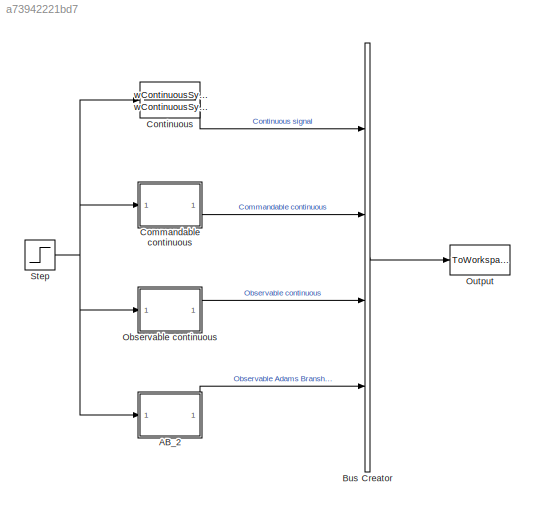
MODEL slx_a73942221bd7
KIND model
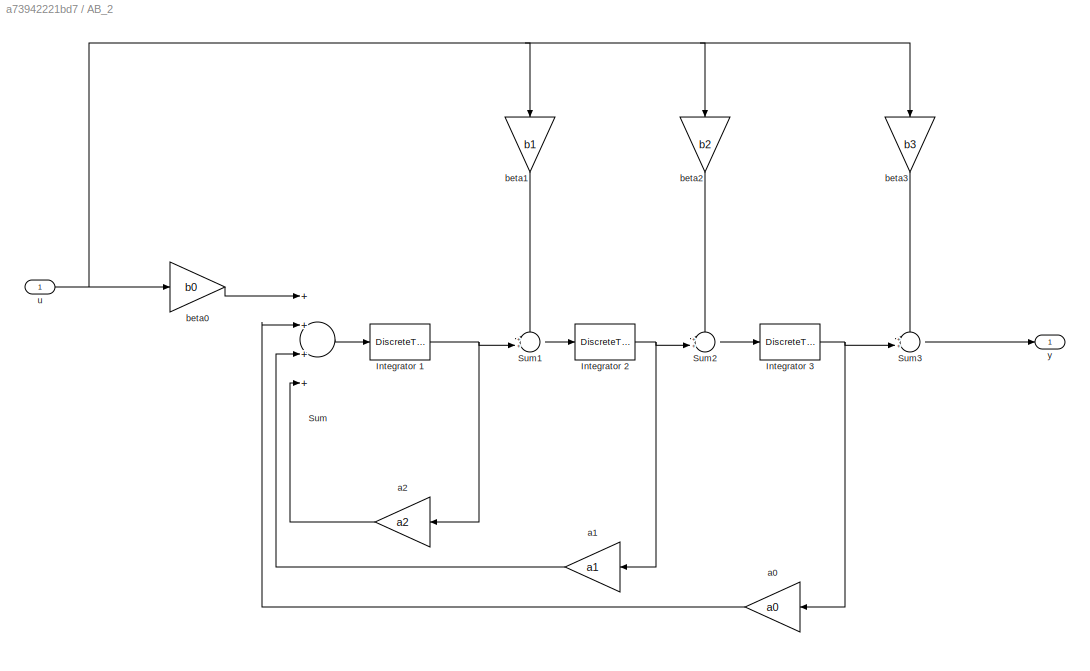
BLOCK [SubSystem] AB_2
  Ports = [1, 1]
  RequestExecContextInheritance = off
  TreatAsAtomicUnit = on
BLOCK [DiscreteTransferFcn] AB_2/Integrator 1
  Denominator = HzDen
  InputPortMap = u0
  Numerator = T*HzNum
  Ports = [1, 1]
  SampleTime = T
BLOCK [DiscreteTransferFcn] AB_2/Integrator 2
  Denominator = HzDen
  InputPortMap = u0
  Numerator = T*HzNum
  Ports = [1, 1]
  SampleTime = T
BLOCK [DiscreteTransferFcn] AB_2/Integrator 3
  Denominator = HzDen
  InputPortMap = u0
  Numerator = T*HzNum
  Ports = [1, 1]
  SampleTime = T
BLOCK [Sum] AB_2/Sum
  InputSameDT = off
  Inputs = ++++
  OutDataTypeStr = Inherit: Inherit via internal rule
  Ports = [4, 1]
  SaturateOnIntegerOverflow = off
BLOCK [Sum] AB_2/Sum1
  IconShape = round
  InputSameDT = off
  Inputs = ++|
  OutDataTypeStr = Inherit: Inherit via internal rule
  Ports = [2, 1]
  SaturateOnIntegerOverflow = off
BLOCK [Sum] AB_2/Sum2
  IconShape = round
  InputSameDT = off
  Inputs = ++|
  OutDataTypeStr = Inherit: Inherit via internal rule
  Ports = [2, 1]
  SaturateOnIntegerOverflow = off
BLOCK [Sum] AB_2/Sum3
  IconShape = round
  InputSameDT = off
  Inputs = ++|
  OutDataTypeStr = Inherit: Inherit via internal rule
  Ports = [2, 1]
  SaturateOnIntegerOverflow = off
BLOCK [Gain] AB_2/a0
  Gain = a0
  OutDataTypeStr = Inherit: Inherit via internal rule
  ParamDataTypeStr = Inherit: Inherit via internal rule
  SaturateOnIntegerOverflow = off
BLOCK [Gain] AB_2/a1
  Gain = a1
  OutDataTypeStr = Inherit: Inherit via internal rule
  ParamDataTypeStr = Inherit: Inherit via internal rule
  SaturateOnIntegerOverflow = off
BLOCK [Gain] AB_2/a2
  Gain = a2
  OutDataTypeStr = Inherit: Inherit via internal rule
  ParamDataTypeStr = Inherit: Inherit via internal rule
  SaturateOnIntegerOverflow = off
BLOCK [Gain] AB_2/beta0
  Gain = b0
  OutDataTypeStr = Inherit: Inherit via internal rule
  ParamDataTypeStr = Inherit: Inherit via internal rule
  SaturateOnIntegerOverflow = off
BLOCK [Gain] AB_2/beta1
  Gain = b1
  OutDataTypeStr = Inherit: Inherit via internal rule
  ParamDataTypeStr = Inherit: Inherit via internal rule
  SaturateOnIntegerOverflow = off
BLOCK [Gain] AB_2/beta2
  Gain = b2
  OutDataTypeStr = Inherit: Inherit via internal rule
  ParamDataTypeStr = Inherit: Inherit via internal rule
  SaturateOnIntegerOverflow = off
BLOCK [Gain] AB_2/beta3
  Gain = b3
  OutDataTypeStr = Inherit: Inherit via internal rule
  ParamDataTypeStr = Inherit: Inherit via internal rule
  SaturateOnIntegerOverflow = off
BLOCK [Inport] AB_2/u
  IconDisplay = Port number
BLOCK [Outport] AB_2/y
  IconDisplay = Port number
BLOCK [BusCreator] Bus Creator
  DisplayOption = bar
  Ports = [4, 1]
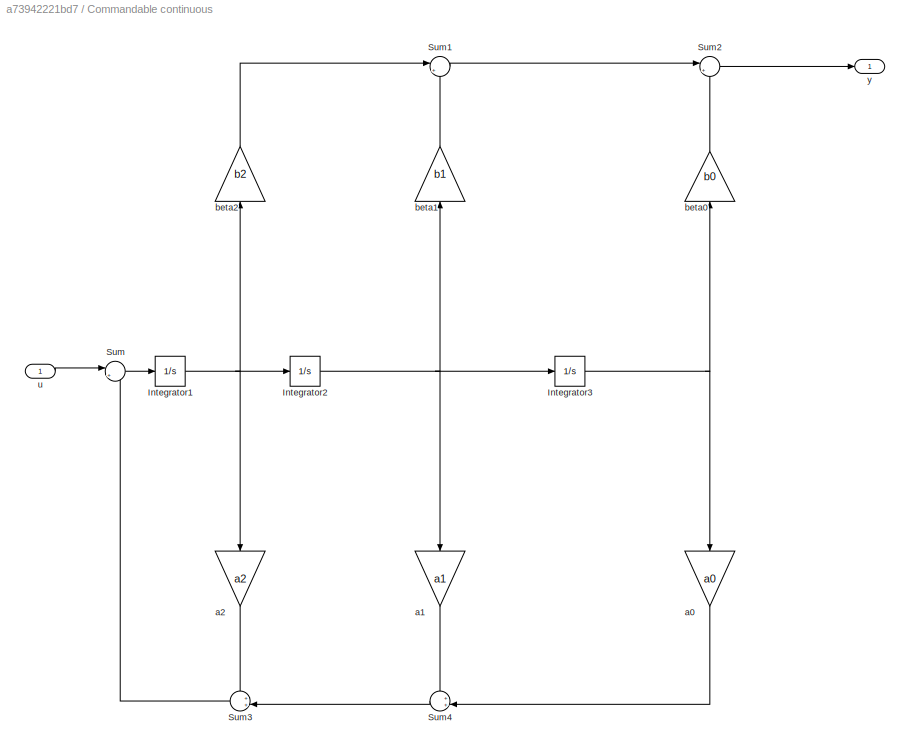
BLOCK [SubSystem] Commandable continuous
  Ports = [1, 1]
  RequestExecContextInheritance = off
  TreatAsAtomicUnit = on
BLOCK [Integrator] Commandable continuous/Integrator1
  Ports = [1, 1]
BLOCK [Integrator] Commandable continuous/Integrator2
  Ports = [1, 1]
BLOCK [Integrator] Commandable continuous/Integrator3
  Ports = [1, 1]
BLOCK [Sum] Commandable continuous/Sum
  IconShape = round
  InputSameDT = off
  Inputs = |++
  OutDataTypeStr = Inherit: Inherit via internal rule
  Ports = [2, 1]
  SaturateOnIntegerOverflow = off
BLOCK [Sum] Commandable continuous/Sum1
  IconShape = round
  InputSameDT = off
  Inputs = |++
  OutDataTypeStr = Inherit: Inherit via internal rule
  Ports = [2, 1]
  SaturateOnIntegerOverflow = off
BLOCK [Sum] Commandable continuous/Sum2
  IconShape = round
  InputSameDT = off
  Inputs = |++
  OutDataTypeStr = Inherit: Inherit via internal rule
  Ports = [2, 1]
  SaturateOnIntegerOverflow = off
BLOCK [Sum] Commandable continuous/Sum3
  IconShape = round
  InputSameDT = off
  Inputs = ++|
  OutDataTypeStr = Inherit: Inherit via internal rule
  Ports = [2, 1]
  SaturateOnIntegerOverflow = off
BLOCK [Sum] Commandable continuous/Sum4
  IconShape = round
  InputSameDT = off
  Inputs = ++|
  OutDataTypeStr = Inherit: Inherit via internal rule
  Ports = [2, 1]
  SaturateOnIntegerOverflow = off
BLOCK [Gain] Commandable continuous/a0
  Gain = a0
  OutDataTypeStr = Inherit: Inherit via internal rule
  ParamDataTypeStr = Inherit: Inherit via internal rule
  SaturateOnIntegerOverflow = off
BLOCK [Gain] Commandable continuous/a1
  Gain = a1
  OutDataTypeStr = Inherit: Inherit via internal rule
  ParamDataTypeStr = Inherit: Inherit via internal rule
  SaturateOnIntegerOverflow = off
BLOCK [Gain] Commandable continuous/a2
  Gain = a2
  OutDataTypeStr = Inherit: Inherit via internal rule
  ParamDataTypeStr = Inherit: Inherit via internal rule
  SaturateOnIntegerOverflow = off
BLOCK [Gain] Commandable continuous/beta0
  Gain = b0
  OutDataTypeStr = Inherit: Inherit via internal rule
  ParamDataTypeStr = Inherit: Inherit via internal rule
  SaturateOnIntegerOverflow = off
BLOCK [Gain] Commandable continuous/beta1
  Gain = b1
  OutDataTypeStr = Inherit: Inherit via internal rule
  ParamDataTypeStr = Inherit: Inherit via internal rule
  SaturateOnIntegerOverflow = off
BLOCK [Gain] Commandable continuous/beta2
  Gain = b2
  OutDataTypeStr = Inherit: Inherit via internal rule
  ParamDataTypeStr = Inherit: Inherit via internal rule
  SaturateOnIntegerOverflow = off
BLOCK [Inport] Commandable continuous/u
  IconDisplay = Port number
BLOCK [Outport] Commandable continuous/y
  IconDisplay = Port number
BLOCK [TransferFcn] Continuous
  Denominator = wContinuousSystemDen
  Numerator = wContinuousSystemNum
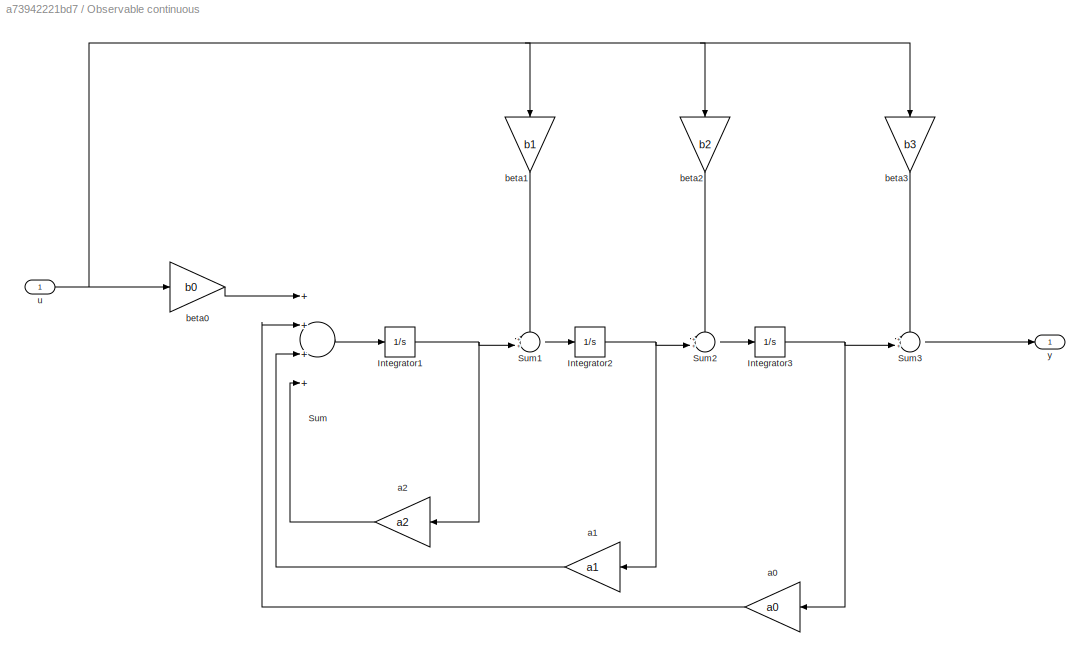
BLOCK [SubSystem] Observable continuous
  Ports = [1, 1]
  RequestExecContextInheritance = off
  TreatAsAtomicUnit = on
BLOCK [Integrator] Observable continuous/Integrator1
  Ports = [1, 1]
BLOCK [Integrator] Observable continuous/Integrator2
  Ports = [1, 1]
BLOCK [Integrator] Observable continuous/Integrator3
  Ports = [1, 1]
BLOCK [Sum] Observable continuous/Sum
  InputSameDT = off
  Inputs = ++++
  OutDataTypeStr = Inherit: Inherit via internal rule
  Ports = [4, 1]
  SaturateOnIntegerOverflow = off
BLOCK [Sum] Observable continuous/Sum1
  IconShape = round
  InputSameDT = off
  Inputs = ++|
  OutDataTypeStr = Inherit: Inherit via internal rule
  Ports = [2, 1]
  SaturateOnIntegerOverflow = off
BLOCK [Sum] Observable continuous/Sum2
  IconShape = round
  InputSameDT = off
  Inputs = ++|
  OutDataTypeStr = Inherit: Inherit via internal rule
  Ports = [2, 1]
  SaturateOnIntegerOverflow = off
BLOCK [Sum] Observable continuous/Sum3
  IconShape = round
  InputSameDT = off
  Inputs = ++|
  OutDataTypeStr = Inherit: Inherit via internal rule
  Ports = [2, 1]
  SaturateOnIntegerOverflow = off
BLOCK [Gain] Observable continuous/a0
  Gain = a0
  OutDataTypeStr = Inherit: Inherit via internal rule
  ParamDataTypeStr = Inherit: Inherit via internal rule
  SaturateOnIntegerOverflow = off
BLOCK [Gain] Observable continuous/a1
  Gain = a1
  OutDataTypeStr = Inherit: Inherit via internal rule
  ParamDataTypeStr = Inherit: Inherit via internal rule
  SaturateOnIntegerOverflow = off
BLOCK [Gain] Observable continuous/a2
  Gain = a2
  OutDataTypeStr = Inherit: Inherit via internal rule
  ParamDataTypeStr = Inherit: Inherit via internal rule
  SaturateOnIntegerOverflow = off
BLOCK [Gain] Observable continuous/beta0
  Gain = b0
  OutDataTypeStr = Inherit: Inherit via internal rule
  ParamDataTypeStr = Inherit: Inherit via internal rule
  SaturateOnIntegerOverflow = off
BLOCK [Gain] Observable continuous/beta1
  Gain = b1
  OutDataTypeStr = Inherit: Inherit via internal rule
  ParamDataTypeStr = Inherit: Inherit via internal rule
  SaturateOnIntegerOverflow = off
BLOCK [Gain] Observable continuous/beta2
  Gain = b2
  OutDataTypeStr = Inherit: Inherit via internal rule
  ParamDataTypeStr = Inherit: Inherit via internal rule
  SaturateOnIntegerOverflow = off
BLOCK [Gain] Observable continuous/beta3
  Gain = b3
  OutDataTypeStr = Inherit: Inherit via internal rule
  ParamDataTypeStr = Inherit: Inherit via internal rule
  SaturateOnIntegerOverflow = off
BLOCK [Inport] Observable continuous/u
  IconDisplay = Port number
BLOCK [Outport] Observable continuous/y
  IconDisplay = Port number
BLOCK [ToWorkspace] Output
  FixptAsFi = on
  MaxDataPoints = inf
  Ports = [1]
  SampleTime = -1
  Save2DSignal = 3-D array (concatenate along third dimension)
  SaveFormat = Timeseries
  VariableName = SimOutput
BLOCK [Step] Step
  SampleTime = 0
  Time = 0
NET AB_2/Integrator 1:1 -> AB_2/Sum1:2, AB_2/a2:1
NET AB_2/Integrator 2:1 -> AB_2/Sum2:2, AB_2/a1:1
NET AB_2/Integrator 3:1 -> AB_2/Sum3:2, AB_2/a0:1
LINE AB_2/Sum1:1 -> AB_2/Integrator 2:1
LINE AB_2/Sum2:1 -> AB_2/Integrator 3:1
LINE AB_2/Sum3:1 -> AB_2/y:1
LINE AB_2/Sum:1 -> AB_2/Integrator 1:1
LINE AB_2/a0:1 -> AB_2/Sum:2
LINE AB_2/a1:1 -> AB_2/Sum:3
LINE AB_2/a2:1 -> AB_2/Sum:4
LINE AB_2/beta0:1 -> AB_2/Sum:1
LINE AB_2/beta1:1 -> AB_2/Sum1:1
LINE AB_2/beta2:1 -> AB_2/Sum2:1
LINE AB_2/beta3:1 -> AB_2/Sum3:1
NET AB_2/u:1 -> AB_2/beta0:1, AB_2/beta1:1, AB_2/beta2:1, AB_2/beta3:1
LINE AB_2:1 -> Bus Creator:4
LINE Bus Creator:1 -> Output:1
NET Commandable continuous/Integrator1:1 -> Commandable continuous/Integrator2:1, Commandable continuous/a2:1, Commandable continuous/beta2:1
NET Commandable continuous/Integrator2:1 -> Commandable continuous/Integrator3:1, Commandable continuous/a1:1, Commandable continuous/beta1:1
NET Commandable continuous/Integrator3:1 -> Commandable continuous/a0:1, Commandable continuous/beta0:1
LINE Commandable continuous/Sum1:1 -> Commandable continuous/Sum2:1
LINE Commandable continuous/Sum2:1 -> Commandable continuous/y:1
LINE Commandable continuous/Sum3:1 -> Commandable continuous/Sum:2
LINE Commandable continuous/Sum4:1 -> Commandable continuous/Sum3:2
LINE Commandable continuous/Sum:1 -> Commandable continuous/Integrator1:1
LINE Commandable continuous/a0:1 -> Commandable continuous/Sum4:2
LINE Commandable continuous/a1:1 -> Commandable continuous/Sum4:1
LINE Commandable continuous/a2:1 -> Commandable continuous/Sum3:1
LINE Commandable continuous/beta0:1 -> Commandable continuous/Sum2:2
LINE Commandable continuous/beta1:1 -> Commandable continuous/Sum1:2
LINE Commandable continuous/beta2:1 -> Commandable continuous/Sum1:1
LINE Commandable continuous/u:1 -> Commandable continuous/Sum:1
LINE Commandable continuous:1 -> Bus Creator:2
LINE Continuous:1 -> Bus Creator:1
NET Observable continuous/Integrator1:1 -> Observable continuous/Sum1:2, Observable continuous/a2:1
NET Observable continuous/Integrator2:1 -> Observable continuous/Sum2:2, Observable continuous/a1:1
NET Observable continuous/Integrator3:1 -> Observable continuous/Sum3:2, Observable continuous/a0:1
LINE Observable continuous/Sum1:1 -> Observable continuous/Integrator2:1
LINE Observable continuous/Sum2:1 -> Observable continuous/Integrator3:1
LINE Observable continuous/Sum3:1 -> Observable continuous/y:1
LINE Observable continuous/Sum:1 -> Observable continuous/Integrator1:1
LINE Observable continuous/a0:1 -> Observable continuous/Sum:2
LINE Observable continuous/a1:1 -> Observable continuous/Sum:3
LINE Observable continuous/a2:1 -> Observable continuous/Sum:4
LINE Observable continuous/beta0:1 -> Observable continuous/Sum:1
LINE Observable continuous/beta1:1 -> Observable continuous/Sum1:1
LINE Observable continuous/beta2:1 -> Observable continuous/Sum2:1
LINE Observable continuous/beta3:1 -> Observable continuous/Sum3:1
NET Observable continuous/u:1 -> Observable continuous/beta0:1, Observable continuous/beta1:1, Observable continuous/beta2:1, Observable continuous/beta3:1
LINE Observable continuous:1 -> Bus Creator:3
NET Step:1 -> AB_2:1, Commandable continuous:1, Continuous:1, Observable continuous:1
note: NET lines group one-source signal fan-out (src -> all destinations, sorted); 1:1 wires keep LINE
